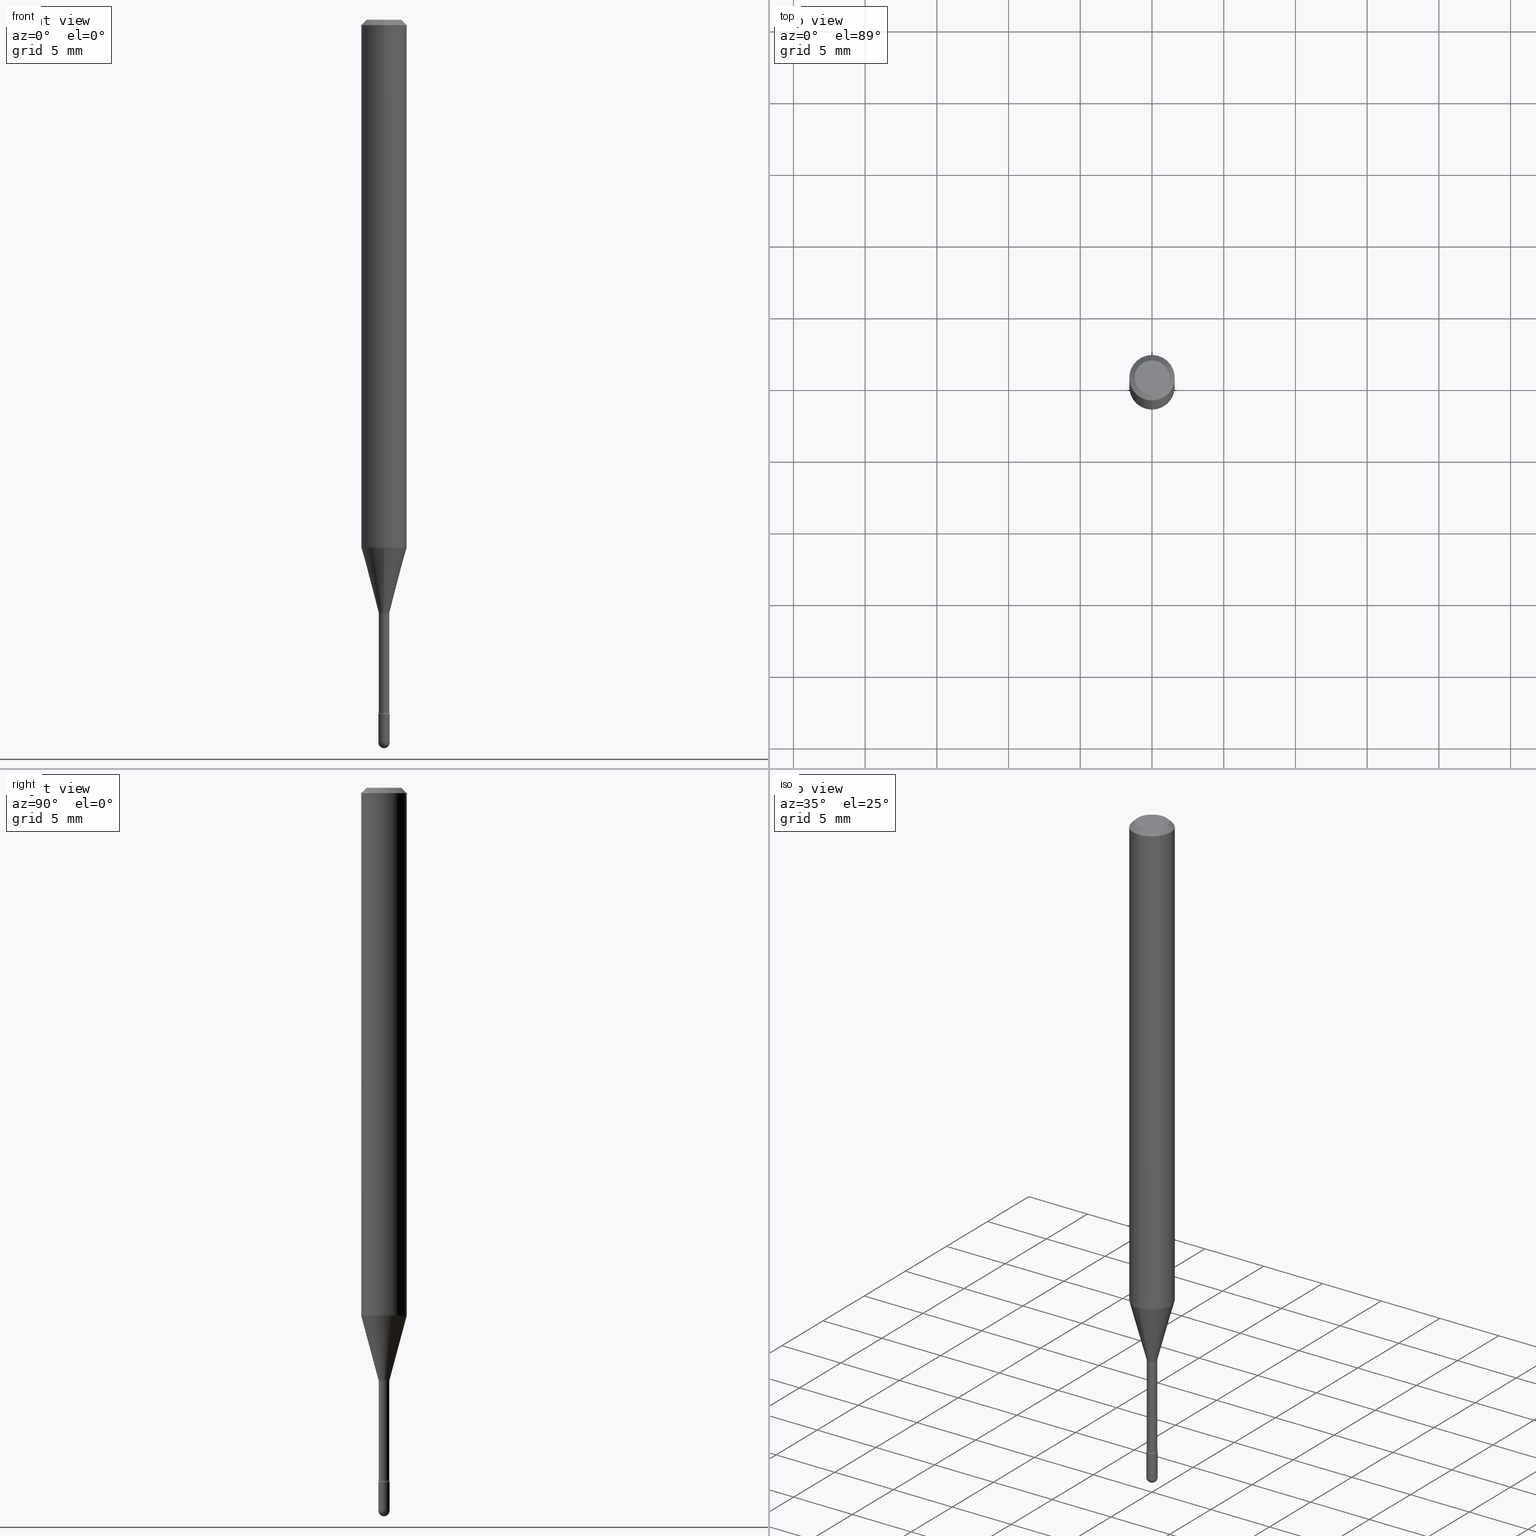
[diagram: canonical four-view strip — front | top / right | iso, engineering-drawing reading convention]
A machine part, canonical four-view strip (front | top / right | iso — engineering-drawing reading convention). The complete STEP part file that produces these views, byte-faithful:
ISO-10303-21;
HEADER;
FILE_DESCRIPTION (( 'STEP AP203' ),
    '1' );
FILE_NAME ('04571.STEP',
    '2024-04-09T22:01:47',
    ( '' ),
    ( '' ),
    'SwSTEP 2.0',
    'SolidWorks 2023',
    '' );
FILE_SCHEMA (( 'CONFIG_CONTROL_DESIGN' ));
ENDSEC;

DATA;
#1 = CARTESIAN_POINT ( 'NONE',  ( -1.082359215040905611E-16, -0.01550000000000666643, -1.906999999999999806 ) ) ;
#2 = VERTEX_POINT ( 'NONE', #214 ) ;
#3 = DIRECTION ( 'NONE',  ( 6.982962677686265922E-15, 1.000000000000000000, 0.000000000000000000 ) ) ;
#4 = VERTEX_POINT ( 'NONE', #376 ) ;
#5 = CIRCLE ( 'NONE', #289, 0.01549999999999999989 ) ;
#6 = FACE_OUTER_BOUND ( 'NONE', #204, .T. ) ;
#7 = CIRCLE ( 'NONE', #484, 0.01549999999999993744 ) ;
#8 = ORIENTED_EDGE ( 'NONE', *, *, #545, .T. ) ;
#9 = DIRECTION ( 'NONE',  ( -6.982962677686265922E-15, -1.000000000000000000, 3.491488494413426831E-15 ) ) ;
#10 = CARTESIAN_POINT ( 'NONE',  ( 4.440892098500978191E-16, 0.06249999999999492073, -1.449048163777072906 ) ) ;
#11 = DIRECTION ( 'NONE',  ( -2.445463809477115105E-29, 3.491488494413427226E-15, 1.000000000000000000 ) ) ;
#12 = CARTESIAN_POINT ( 'NONE',  ( 2.755524256971659993E-16, 0.01506111260565827503, -1.626092501787273159 ) ) ;
#13 = DIRECTION ( 'NONE',  ( -2.445468806185136597E-29, 3.491481338843145583E-15, 1.000000000000000000 ) ) ;
#14 = AXIS2_PLACEMENT_3D ( 'NONE', #555, #171, #203 ) ;
#15 = AXIS2_PLACEMENT_3D ( 'NONE', #460, #63, #97 ) ;
#16 = CARTESIAN_POINT ( 'NONE',  ( 3.986052497610997470E-29, -5.691026553214718169E-15, -1.629974787463811081 ) ) ;
#17 = DIRECTION ( 'NONE',  ( 1.000000000000000000, -6.982962677686266711E-15, 4.876176775795935232E-29 ) ) ;
#18 = CALENDAR_DATE ( 2024, 9, 4 ) ;
#19 = EDGE_CURVE ( 'NONE', #250, #516, #115, .T. ) ;
#20 = COORDINATED_UNIVERSAL_TIME_OFFSET ( 5, 0, .BEHIND. ) ;
#21 = DESIGN_CONTEXT ( 'detailed design', #165, 'design' ) ;
#22 = EDGE_CURVE ( 'NONE', #132, #2, #519, .T. ) ;
#23 = EDGE_CURVE ( 'NONE', #342, #36, #215, .T. ) ;
#24 = CLOSED_SHELL ( 'NONE', ( #224, #449, #434, #411, #205 ) ) ;
#25 = ORIENTED_EDGE ( 'NONE', *, *, #433, .F. ) ;
#26 = DIRECTION ( 'NONE',  ( 1.000000000000000000, 0.000000000000000000, 0.000000000000000000 ) ) ;
#27 = DIRECTION ( 'NONE',  ( 1.000000000000000000, -6.982962677686238312E-15, 0.000000000000000000 ) ) ;
#28 = CARTESIAN_POINT ( 'NONE',  ( 0.01549999999999999989, -6.766490834678014468E-15, -1.906999999999999806 ) ) ;
#29 = EDGE_LOOP ( 'NONE', ( #232, #522, #25, #448 ) ) ;
#30 = DIRECTION ( 'NONE',  ( -6.982962677686265922E-15, -1.000000000000000000, 3.491488494413427620E-15 ) ) ;
#31 = CARTESIAN_POINT ( 'NONE',  ( 4.853032845874404195E-29, -6.928844716934222977E-15, -1.984500000000000153 ) ) ;
#32 = CLOSED_SHELL ( 'NONE', ( #318, #394, #508, #252, #503, #385, #241, #88, #315, #308, #125, #284, #363, #540 ) ) ;
#33 = EDGE_CURVE ( 'NONE', #317, #81, #166, .T. ) ;
#34 = LINE ( 'NONE', #496, #43 ) ;
#35 = AXIS2_PLACEMENT_3D ( 'NONE', #548, #113, #511 ) ;
#36 = VERTEX_POINT ( 'NONE', #514 ) ;
#37 = AXIS2_PLACEMENT_3D ( 'NONE', #461, #221, #299 ) ;
#38 = LINE ( 'NONE', #531, #262 ) ;
#39 = CARTESIAN_POINT ( 'NONE',  ( -1.169113584055446105E-44, 1.669184350826100908E-30, 4.780733988912460139E-16 ) ) ;
#40 = ORIENTED_EDGE ( 'NONE', *, *, #287, .F. ) ;
#41 = PRODUCT_RELATED_PRODUCT_CATEGORY ( 'detail', '', ( #338 ) ) ;
#42 = CIRCLE ( 'NONE', #295, 0.04749999999999999362 ) ;
#43 = VECTOR ( 'NONE', #371, 39.37007874015748143 ) ;
#44 = EDGE_LOOP ( 'NONE', ( #219, #381 ) ) ;
#45 = DIRECTION ( 'NONE',  ( -2.445463809477115105E-29, 3.491488494413427620E-15, 1.000000000000000000 ) ) ;
#46 = ORIENTED_EDGE ( 'NONE', *, *, #141, .F. ) ;
#47 = CARTESIAN_POINT ( 'NONE',  ( 4.663509013395054719E-29, -6.658254913173878091E-15, -1.906999999999999806 ) ) ;
#48 = ORIENTED_EDGE ( 'NONE', *, *, #490, .F. ) ;
#49 = CIRCLE ( 'NONE', #345, 0.01549999999999999989 ) ;
#50 = AXIS2_PLACEMENT_3D ( 'NONE', #529, #143, #367 ) ;
#51 = CARTESIAN_POINT ( 'NONE',  ( 2.099653784171563441E-16, 0.02954999999999339752, -1.901746667724196316 ) ) ;
#52 = CARTESIAN_POINT ( 'NONE',  ( -0.01549999999999999989, -6.683415691011234513E-15, -1.984500000000000153 ) ) ;
#53 = CARTESIAN_POINT ( 'NONE',  ( 1.067590460480017694E-16, 0.01454999999999338246, -1.901746667724196316 ) ) ;
#54 = DIRECTION ( 'NONE',  ( -6.982962677686265922E-15, -1.000000000000000000, 3.491488494413427226E-15 ) ) ;
#55 = EDGE_CURVE ( 'NONE', #344, #516, #5, .T. ) ;
#56 = DIRECTION ( 'NONE',  ( -2.445463809477115105E-29, 3.491488494413427226E-15, 1.000000000000000000 ) ) ;
#57 = CIRCLE ( 'NONE', #333, 0.06250000000000000000 ) ;
#58 = CC_DESIGN_SECURITY_CLASSIFICATION ( #226, ( #255 ) ) ;
#59 = APPROVAL_STATUS ( 'not_yet_approved' ) ;
#60 = CARTESIAN_POINT ( 'NONE',  ( 0.01549999999999999989, -6.901785736558187699E-15, -1.984500000000000153 ) ) ;
#61 = CARTESIAN_POINT ( 'NONE',  ( 0.000000000000000000, 0.000000000000000000, 0.000000000000000000 ) ) ;
#62 = CARTESIAN_POINT ( 'NONE',  ( 0.000000000000000000, 0.000000000000000000, 0.000000000000000000 ) ) ;
#63 = DIRECTION ( 'NONE',  ( -2.445463809477115105E-29, 3.491488494413427226E-15, 1.000000000000000000 ) ) ;
#64 = CALENDAR_DATE ( 2024, 9, 4 ) ;
#65 = EDGE_CURVE ( 'NONE', #536, #374, #38, .T. ) ;
#66 = MANIFOLD_SOLID_BREP ( 'Body-Move/Copy2[1]', #24 ) ;
#67 = EDGE_CURVE ( 'NONE', #516, #344, #49, .T. ) ;
#68 = AXIS2_PLACEMENT_3D ( 'NONE', #31, #331, #102 ) ;
#69 = APPROVAL_PERSON_ORGANIZATION ( #408, #231, #207 ) ;
#70 = ORIENTED_EDGE ( 'NONE', *, *, #550, .F. ) ;
#71 = FACE_OUTER_BOUND ( 'NONE', #525, .T. ) ;
#72 = DIRECTION ( 'NONE',  ( 6.982962677686265922E-15, 1.000000000000000000, 0.000000000000000000 ) ) ;
#73 = CARTESIAN_POINT ( 'NONE',  ( 3.668195714215692783E-31, -5.237232741620169829E-17, -0.01500000000000008271 ) ) ;
#74 = PERSON_AND_ORGANIZATION ( #414, #157 ) ;
#75 = VERTEX_POINT ( 'NONE', #10 ) ;
#76 = CARTESIAN_POINT ( 'NONE',  ( 2.023516522917315970E-45, -2.889125445918776948E-31, -8.274669218195695059E-17 ) ) ;
#77 = CARTESIAN_POINT ( 'NONE',  ( 4.650662153186051955E-29, -6.639913001566167862E-15, -1.901746667724196316 ) ) ;
#78 = AXIS2_PLACEMENT_3D ( 'NONE', #164, #283, #457 ) ;
#79 = AXIS2_PLACEMENT_3D ( 'NONE', #206, #321, #249 ) ;
#80 = CARTESIAN_POINT ( 'NONE',  ( -0.01549999999999999989, 1.101341240428155280E-16, -7.624349389895103058E-31 ) ) ;
#81 = VERTEX_POINT ( 'NONE', #426 ) ;
#82 = ORIENTED_EDGE ( 'NONE', *, *, #33, .T. ) ;
#83 = PRODUCT_DEFINITION_SHAPE ( 'NONE', 'NONE',  #455 ) ;
#84 = CARTESIAN_POINT ( 'NONE',  ( 4.364351673553919652E-16, 0.06249999999999995143, -0.01500000000000030129 ) ) ;
#85 = ORIENTED_EDGE ( 'NONE', *, *, #492, .T. ) ;
#86 = AXIS2_PLACEMENT_3D ( 'NONE', #51, #563, #178 ) ;
#87 = LOCAL_TIME ( 18, 1, 47.00000000000000000, #240 ) ;
#88 = ADVANCED_FACE ( 'NONE', ( #535 ), #188, .T. ) ;
#89 = ORIENTED_EDGE ( 'NONE', *, *, #564, .F. ) ;
#90 = ORIENTED_EDGE ( 'NONE', *, *, #193, .T. ) ;
#91 = DIRECTION ( 'NONE',  ( -2.445463809477115105E-29, 3.491488494413427226E-15, 1.000000000000000000 ) ) ;
#92 = FACE_OUTER_BOUND ( 'NONE', #259, .T. ) ;
#93 = DIRECTION ( 'NONE',  ( -6.982962677686265922E-15, -1.000000000000000000, 4.370956789862821150E-15 ) ) ;
#94 = ORIENTED_EDGE ( 'NONE', *, *, #65, .F. ) ;
#95 = CARTESIAN_POINT ( 'NONE',  ( 3.668195714215692783E-31, -5.237232741620169829E-17, -0.01500000000000008271 ) ) ;
#96 = DIRECTION ( 'NONE',  ( -2.445468806185136597E-29, 3.491481338843145583E-15, 1.000000000000000000 ) ) ;
#97 = DIRECTION ( 'NONE',  ( -6.982962677686266711E-15, -1.000000000000000000, 3.491488494413426042E-15 ) ) ;
#98 = CARTESIAN_POINT ( 'NONE',  ( -3.773273898774340269E-16, -0.04749999999999999362, 8.309901130268083621E-17 ) ) ;
#99 = LINE ( 'NONE', #421, #369 ) ;
#100 = CC_DESIGN_DATE_AND_TIME_ASSIGNMENT ( #158, #110, ( #226 ) ) ;
#101 = APPLICATION_CONTEXT ( 'configuration controlled 3d designs of mechanical parts and assemblies' ) ;
#102 = DIRECTION ( 'NONE',  ( 1.000000000000000000, -6.982962677686238312E-15, 0.000000000000000000 ) ) ;
#103 = DIRECTION ( 'NONE',  ( -2.445463809477115105E-29, 3.491488494413427226E-15, 1.000000000000000000 ) ) ;
#104 = FACE_OUTER_BOUND ( 'NONE', #124, .T. ) ;
#105 = DIRECTION ( 'NONE',  ( -6.982962677686267499E-15, -1.000000000000000000, 0.000000000000000000 ) ) ;
#106 = VECTOR ( 'NONE', #398, 39.37007874015748143 ) ;
#107 = AXIS2_PLACEMENT_3D ( 'NONE', #392, #474, #3 ) ;
#108 = UNCERTAINTY_MEASURE_WITH_UNIT (LENGTH_MEASURE( 1.000000000000000082E-05 ), #382, 'distance_accuracy_value', 'NONE');
#109 = PLANE ( 'NONE',  #209 ) ;
#110 = DATE_TIME_ROLE ( 'classification_date' ) ;
#111 = APPLICATION_PROTOCOL_DEFINITION ( 'international standard', 'config_control_design', 1994, #165 ) ;
#112 = ORIENTED_EDGE ( 'NONE', *, *, #65, .T. ) ;
#113 = DIRECTION ( 'NONE',  ( -2.445463809477115105E-29, 3.491488494413427226E-15, 1.000000000000000000 ) ) ;
#114 = CARTESIAN_POINT ( 'NONE',  ( -4.364351673553563186E-16, -0.06250000000000507927, -1.449048163777072240 ) ) ;
#115 = CIRCLE ( 'NONE', #86, 0.01500000000000001853 ) ;
#116 = COORDINATED_UNIVERSAL_TIME_OFFSET ( 5, 0, .BEHIND. ) ;
#117 = CC_DESIGN_APPROVAL ( #436, ( #255 ) ) ;
#118 = ORIENTED_EDGE ( 'NONE', *, *, #287, .T. ) ;
#119 = DATE_AND_TIME ( #311, #87 ) ;
#120 = EDGE_CURVE ( 'NONE', #423, #536, #272, .T. ) ;
#121 = ORIENTED_EDGE ( 'NONE', *, *, #492, .F. ) ;
#122 = EDGE_CURVE ( 'NONE', #140, #81, #99, .T. ) ;
#123 = DIRECTION ( 'NONE',  ( -2.445463809477115105E-29, 3.491488494413427226E-15, 1.000000000000000000 ) ) ;
#124 = EDGE_LOOP ( 'NONE', ( #70, #530, #416, #112, #475 ) ) ;
#125 = ADVANCED_FACE ( 'NONE', ( #544 ), #109, .F. ) ;
#126 = AXIS2_PLACEMENT_3D ( 'NONE', #351, #437, #393 ) ;
#127 = VECTOR ( 'NONE', #159, 39.37007874015748854 ) ;
#128 = ORIENTED_EDGE ( 'NONE', *, *, #372, .T. ) ;
#129 = CYLINDRICAL_SURFACE ( 'NONE', #517, 0.06250000000000000000 ) ;
#130 = ORIENTED_EDGE ( 'NONE', *, *, #523, .F. ) ;
#131 = DIRECTION ( 'NONE',  ( -6.982962677686265922E-15, -1.000000000000000000, 4.370956789862821150E-15 ) ) ;
#132 = VERTEX_POINT ( 'NONE', #198 ) ;
#133 = ORIENTED_EDGE ( 'NONE', *, *, #264, .F. ) ;
#134 = EDGE_LOOP ( 'NONE', ( #121, #368, #566, #528 ) ) ;
#135 = CARTESIAN_POINT ( 'NONE',  ( 4.663499484672858072E-29, -6.658268558846404799E-15, -1.906999999999999806 ) ) ;
#136 = DIRECTION ( 'NONE',  ( -2.445463809477115105E-29, 3.491488494413427226E-15, 1.000000000000000000 ) ) ;
#137 = DIRECTION ( 'NONE',  ( -6.982962677686266711E-15, -1.000000000000000000, 3.491488494413428014E-15 ) ) ;
#138 = TOROIDAL_SURFACE ( 'NONE', #388, 0.02955000000000003804, 0.01500000000000001853 ) ;
#139 = DIRECTION ( 'NONE',  ( -2.445463809477115105E-29, 3.491488494413427226E-15, 1.000000000000000000 ) ) ;
#140 = VERTEX_POINT ( 'NONE', #359 ) ;
#141 = EDGE_CURVE ( 'NONE', #75, #2, #201, .T. ) ;
#142 = ORIENTED_EDGE ( 'NONE', *, *, #316, .T. ) ;
#143 = DIRECTION ( 'NONE',  ( 1.000000000000000000, -7.105427357601001070E-15, 4.926315596172544680E-29 ) ) ;
#144 = ORIENTED_EDGE ( 'NONE', *, *, #245, .T. ) ;
#145 = CARTESIAN_POINT ( 'NONE',  ( 4.853032845874404195E-29, -6.928844716934222977E-15, -1.984500000000000153 ) ) ;
#146 = CIRCLE ( 'NONE', #271, 0.06250000000000000000 ) ;
#147 = DIRECTION ( 'NONE',  ( -2.445463809477115105E-29, 3.491488494413427226E-15, 1.000000000000000000 ) ) ;
#148 = CC_DESIGN_PERSON_AND_ORGANIZATION_ASSIGNMENT ( #512, #153, ( #455 ) ) ;
#149 = LOCAL_TIME ( 18, 1, 47.00000000000000000, #20 ) ;
#150 = CARTESIAN_POINT ( 'NONE',  ( -1.101341240427667542E-16, -0.01550000000000689715, -1.984500000000000153 ) ) ;
#151 = ORIENTED_EDGE ( 'NONE', *, *, #163, .T. ) ;
#152 = DIRECTION ( 'NONE',  ( -6.982962677686265133E-15, -1.000000000000000000, 0.000000000000000000 ) ) ;
#153 = PERSON_AND_ORGANIZATION_ROLE ( 'creator' ) ;
#154 = AXIS2_PLACEMENT_3D ( 'NONE', #185, #348, #533 ) ;
#155 = EDGE_CURVE ( 'NONE', #250, #317, #161, .T. ) ;
#156 = DIRECTION ( 'NONE',  ( 4.937700262164548042E-15, 0.7071067811865451302, -0.7071067811865499042 ) ) ;
#157 = ORGANIZATION ( 'UNSPECIFIED', 'UNSPECIFIED', '' ) ;
#158 = DATE_AND_TIME ( #18, #192 ) ;
#159 = DIRECTION ( 'NONE',  ( -1.807323732225328562E-15, -0.2588190451025179639, 0.9659258262890690894 ) ) ;
#160 = VERTEX_POINT ( 'NONE', #114 ) ;
#161 = LINE ( 'NONE', #502, #556 ) ;
#162 = APPROVAL_ROLE ( '' ) ;
#163 = EDGE_CURVE ( 'NONE', #174, #2, #146, .T. ) ;
#164 = CARTESIAN_POINT ( 'NONE',  ( 3.976550363982877177E-29, -5.677483260842208723E-15, -1.626092501787273159 ) ) ;
#165 = APPLICATION_CONTEXT ( 'configuration controlled 3d designs of mechanical parts and assemblies' ) ;
#166 = CIRCLE ( 'NONE', #404, 0.01455000000000000217 ) ;
#167 = PERSON_AND_ORGANIZATION_ROLE ( 'creator' ) ;
#168 = CIRCLE ( 'NONE', #305, 0.01455000000000000217 ) ;
#169 = ORIENTED_EDGE ( 'NONE', *, *, #23, .F. ) ;
#170 = DIRECTION ( 'NONE',  ( -6.982962677686265922E-15, -1.000000000000000000, 0.000000000000000000 ) ) ;
#171 = DIRECTION ( 'NONE',  ( -2.445468806185136597E-29, 3.491481338843145583E-15, 1.000000000000000000 ) ) ;
#172 = DIRECTION ( 'NONE',  ( -2.445463809477115105E-29, 3.491488494413427226E-15, 1.000000000000000000 ) ) ;
#173 = CARTESIAN_POINT ( 'NONE',  ( -4.287811248607203282E-16, -0.06250000000000005551, -0.01499999999999986587 ) ) ;
#174 = VERTEX_POINT ( 'NONE', #379 ) ;
#175 = CIRCLE ( 'NONE', #254, 0.01506111260566395105 ) ;
#176 = VECTOR ( 'NONE', #435, 39.37007874015748854 ) ;
#177 = EDGE_CURVE ( 'NONE', #36, #342, #175, .T. ) ;
#178 = DIRECTION ( 'NONE',  ( 7.105427357601001859E-15, 1.000000000000000000, 0.000000000000000000 ) ) ;
#179 = ORIENTED_EDGE ( 'NONE', *, *, #523, .T. ) ;
#180 = EDGE_LOOP ( 'NONE', ( #551, #298, #467, #222 ) ) ;
#181 = FACE_OUTER_BOUND ( 'NONE', #561, .T. ) ;
#182 = CIRCLE ( 'NONE', #538, 0.01500000000000004975 ) ;
#183 = AXIS2_PLACEMENT_3D ( 'NONE', #279, #103, #312 ) ;
#184 = ORIENTED_EDGE ( 'NONE', *, *, #193, .F. ) ;
#185 = CARTESIAN_POINT ( 'NONE',  ( 3.316907271900976096E-16, 0.04749999999999999362, 3.181764987000673253E-17 ) ) ;
#186 = EDGE_LOOP ( 'NONE', ( #559, #373 ) ) ;
#187 = EDGE_CURVE ( 'NONE', #536, #220, #483, .T. ) ;
#188 = CYLINDRICAL_SURFACE ( 'NONE', #470, 0.06250000000000000000 ) ;
#189 = DIRECTION ( 'NONE',  ( -2.445463809477115105E-29, 3.491488494413427226E-15, 1.000000000000000000 ) ) ;
#190 = EDGE_CURVE ( 'NONE', #75, #160, #57, .T. ) ;
#191 = CIRCLE ( 'NONE', #507, 0.01549999999999999989 ) ;
#192 = LOCAL_TIME ( 18, 1, 47.00000000000000000, #366 ) ;
#193 = EDGE_CURVE ( 'NONE', #250, #140, #234, .T. ) ;
#194 = CARTESIAN_POINT ( 'NONE',  ( 1.082359215041854217E-16, 0.01549999999999304191, -1.984500000000000153 ) ) ;
#195 = DIRECTION ( 'NONE',  ( 0.000000000000000000, 0.000000000000000000, 1.000000000000000000 ) ) ;
#196 = PERSON_AND_ORGANIZATION ( #414, #157 ) ;
#197 = TOROIDAL_SURFACE ( 'NONE', #35, 0.02954999999999999641, 0.01500000000000004975 ) ;
#198 = CARTESIAN_POINT ( 'NONE',  ( 3.840629472727447874E-16, 0.04749999999999999362, -2.485923956665947374E-16 ) ) ;
#199 = AXIS2_PLACEMENT_3D ( 'NONE', #329, #332, #443 ) ;
#200 = APPROVAL_STATUS ( 'not_yet_approved' ) ;
#201 = LINE ( 'NONE', #239, #106 ) ;
#202 = SHAPE_DEFINITION_REPRESENTATION ( #83, #307 ) ;
#203 = DIRECTION ( 'NONE',  ( 1.000000000000000000, -6.982962677686238312E-15, 0.000000000000000000 ) ) ;
#204 = EDGE_LOOP ( 'NONE', ( #169, #179, #82, #378 ) ) ;
#205 = ADVANCED_FACE ( 'NONE', ( #104 ), #235, .T. ) ;
#206 = CARTESIAN_POINT ( 'NONE',  ( 4.663509013395054719E-29, -6.658254913173878091E-15, -1.906999999999999806 ) ) ;
#207 = APPROVAL_ROLE ( '' ) ;
#208 = FACE_OUTER_BOUND ( 'NONE', #300, .T. ) ;
#209 = AXIS2_PLACEMENT_3D ( 'NONE', #217, #453, #30 ) ;
#210 = CIRCLE ( 'NONE', #236, 0.01500000000000001853 ) ;
#211 = ORIENTED_EDGE ( 'NONE', *, *, #327, .F. ) ;
#212 = CC_DESIGN_PERSON_AND_ORGANIZATION_ASSIGNMENT ( #74, #167, ( #255 ) ) ;
#213 = ORIENTED_EDGE ( 'NONE', *, *, #155, .T. ) ;
#214 = CARTESIAN_POINT ( 'NONE',  ( 4.440892098500983121E-16, 0.06249999999999995143, -0.01500000000000030129 ) ) ;
#215 = CIRCLE ( 'NONE', #304, 0.01506111260566395105 ) ;
#216 = AXIS2_PLACEMENT_3D ( 'NONE', #39, #248, #412 ) ;
#217 = CARTESIAN_POINT ( 'NONE',  ( 1.082359215041837453E-16, 0.01549999999999334029, -1.906999999999999806 ) ) ;
#218 = ORIENTED_EDGE ( 'NONE', *, *, #19, .T. ) ;
#219 = ORIENTED_EDGE ( 'NONE', *, *, #264, .T. ) ;
#220 = VERTEX_POINT ( 'NONE', #194 ) ;
#221 = DIRECTION ( 'NONE',  ( -1.000000000000000000, 6.982962677686265922E-15, -4.883557194083112901E-29 ) ) ;
#222 = ORIENTED_EDGE ( 'NONE', *, *, #372, .F. ) ;
#223 = DIRECTION ( 'NONE',  ( -2.438088387897960049E-29, 3.491481338843145188E-15, 1.000000000000000000 ) ) ;
#224 = ADVANCED_FACE ( 'NONE', ( #257 ), #386, .T. ) ;
#225 = EDGE_CURVE ( 'NONE', #36, #81, #182, .T. ) ;
#226 = SECURITY_CLASSIFICATION ( '', '', #247 ) ;
#227 = DIRECTION ( 'NONE',  ( -6.982962677686265922E-15, -1.000000000000000000, 0.000000000000000000 ) ) ;
#228 = FACE_OUTER_BOUND ( 'NONE', #471, .T. ) ;
#229 = FACE_OUTER_BOUND ( 'NONE', #477, .T. ) ;
#230 = DIRECTION ( 'NONE',  ( -2.445463809477115105E-29, 3.491488494413427226E-15, 1.000000000000000000 ) ) ;
#231 = APPROVAL ( #324, 'UNSPECIFIED' ) ;
#232 = ORIENTED_EDGE ( 'NONE', *, *, #177, .T. ) ;
#233 = LINE ( 'NONE', #444, #176 ) ;
#234 = CIRCLE ( 'NONE', #413, 0.01455000000000001951 ) ;
#235 = CYLINDRICAL_SURFACE ( 'NONE', #243, 0.01549999999999999989 ) ;
#236 = AXIS2_PLACEMENT_3D ( 'NONE', #552, #354, #105 ) ;
#237 = APPROVAL_DATE_TIME ( #549, #231 ) ;
#238 = FACE_OUTER_BOUND ( 'NONE', #261, .T. ) ;
#239 = CARTESIAN_POINT ( 'NONE',  ( 4.440892098500625669E-16, 0.06250000000000000000, 2.598553679904068616E-16 ) ) ;
#240 = COORDINATED_UNIVERSAL_TIME_OFFSET ( 5, 0, .BEHIND. ) ;
#241 = ADVANCED_FACE ( 'NONE', ( #71 ), #493, .T. ) ;
#242 = DIRECTION ( 'NONE',  ( 1.000000000000000000, -6.982962677686266711E-15, 4.876176775795935232E-29 ) ) ;
#243 = AXIS2_PLACEMENT_3D ( 'NONE', #485, #265, #17 ) ;
#244 = TOROIDAL_SURFACE ( 'NONE', #323, 0.02954999999999999641, 0.01500000000000004975 ) ;
#245 = EDGE_CURVE ( 'NONE', #132, #478, #42, .T. ) ;
#246 = DIRECTION ( 'NONE',  ( -2.445463809477115105E-29, 3.491488494413427226E-15, 1.000000000000000000 ) ) ;
#247 = SECURITY_CLASSIFICATION_LEVEL ( 'unclassified' ) ;
#248 = DIRECTION ( 'NONE',  ( -2.445463809477115105E-29, 3.491488494413427226E-15, 1.000000000000000000 ) ) ;
#249 = DIRECTION ( 'NONE',  ( 1.000000000000000000, -6.982962677686238312E-15, 0.000000000000000000 ) ) ;
#250 = VERTEX_POINT ( 'NONE', #53 ) ;
#251 = ORIENTED_EDGE ( 'NONE', *, *, #33, .F. ) ;
#252 = ADVANCED_FACE ( 'NONE', ( #92 ), #419, .T. ) ;
#253 = ORIENTED_EDGE ( 'NONE', *, *, #155, .F. ) ;
#254 = AXIS2_PLACEMENT_3D ( 'NONE', #418, #230, #152 ) ;
#255 = PRODUCT_DEFINITION_FORMATION_WITH_SPECIFIED_SOURCE ( 'ANY', '', #338, .NOT_KNOWN. ) ;
#256 = ORIENTED_EDGE ( 'NONE', *, *, #67, .T. ) ;
#257 = FACE_OUTER_BOUND ( 'NONE', #518, .T. ) ;
#258 = CARTESIAN_POINT ( 'NONE',  ( 1.033839680531411352E-16, 0.01454999999999430881, -1.629974787463811081 ) ) ;
#259 = EDGE_LOOP ( 'NONE', ( #293, #85, #151, #320 ) ) ;
#260 = DIRECTION ( 'NONE',  ( -2.445463809477115105E-29, 3.491488494413427226E-15, 1.000000000000000000 ) ) ;
#261 = EDGE_LOOP ( 'NONE', ( #387, #213, #291, #277 ) ) ;
#262 = VECTOR ( 'NONE', #481, 39.37007874015748143 ) ;
#263 = CIRCLE ( 'NONE', #405, 0.01455000000000001951 ) ;
#264 = EDGE_CURVE ( 'NONE', #374, #334, #191, .T. ) ;
#265 = DIRECTION ( 'NONE',  ( -2.445468806185136597E-29, 3.491481338843145583E-15, 1.000000000000000000 ) ) ;
#266 = DIRECTION ( 'NONE',  ( -6.982962677686266711E-15, -1.000000000000000000, 3.491488494413428014E-15 ) ) ;
#267 = CARTESIAN_POINT ( 'NONE',  ( 3.543594842706099402E-29, -5.059334991678553225E-15, -1.449048163777072684 ) ) ;
#268 =( NAMED_UNIT ( * ) PLANE_ANGLE_UNIT ( ) SI_UNIT ( $, .RADIAN. ) );
#269 = CC_DESIGN_PERSON_AND_ORGANIZATION_ASSIGNMENT ( #360, #498, ( #338 ) ) ;
#270 = DIRECTION ( 'NONE',  ( -2.445468806185136597E-29, 3.491481338843145583E-15, 1.000000000000000000 ) ) ;
#271 = AXIS2_PLACEMENT_3D ( 'NONE', #73, #246, #465 ) ;
#272 = CIRCLE ( 'NONE', #357, 0.01549999999999999989 ) ;
#273 = CIRCLE ( 'NONE', #297, 0.01549999999999999989 ) ;
#274 = PERSON_AND_ORGANIZATION ( #414, #157 ) ;
#275 = CYLINDRICAL_SURFACE ( 'NONE', #15, 0.01455000000000001084 ) ;
#276 = CALENDAR_DATE ( 2024, 9, 4 ) ;
#277 = ORIENTED_EDGE ( 'NONE', *, *, #122, .F. ) ;
#278 = PERSON_AND_ORGANIZATION_ROLE ( 'design_supplier' ) ;
#279 = CARTESIAN_POINT ( 'NONE',  ( 3.668195714215692783E-31, -5.237232741620169829E-17, -0.01500000000000008271 ) ) ;
#280 = EDGE_LOOP ( 'NONE', ( #184, #218, #256, #211 ) ) ;
#281 = APPROVAL_DATE_TIME ( #396, #436 ) ;
#282 = ORIENTED_EDGE ( 'NONE', *, *, #23, .T. ) ;
#283 = DIRECTION ( 'NONE',  ( -2.445463809477115105E-29, 3.491488494413427226E-15, 1.000000000000000000 ) ) ;
#284 = ADVANCED_FACE ( 'NONE', ( #208 ), #138, .F. ) ;
#285 = CARTESIAN_POINT ( 'NONE',  ( 4.853032845874404195E-29, -6.928844716934222977E-15, -1.984500000000000153 ) ) ;
#286 = DIRECTION ( 'NONE',  ( -2.445463809477115105E-29, 3.491488494413427226E-15, 1.000000000000000000 ) ) ;
#287 = EDGE_CURVE ( 'NONE', #220, #339, #440, .T. ) ;
#288 = FACE_OUTER_BOUND ( 'NONE', #280, .T. ) ;
#289 = AXIS2_PLACEMENT_3D ( 'NONE', #415, #459, #170 ) ;
#290 = AXIS2_PLACEMENT_3D ( 'NONE', #77, #91, #54 ) ;
#291 = ORIENTED_EDGE ( 'NONE', *, *, #545, .F. ) ;
#292 = PLANE ( 'NONE',  #495 ) ;
#293 = ORIENTED_EDGE ( 'NONE', *, *, #316, .F. ) ;
#294 = EDGE_LOOP ( 'NONE', ( #130, #364, #480, #8 ) ) ;
#295 = AXIS2_PLACEMENT_3D ( 'NONE', #76, #172, #137 ) ;
#296 = FACE_OUTER_BOUND ( 'NONE', #294, .T. ) ;
#297 = AXIS2_PLACEMENT_3D ( 'NONE', #479, #13, #309 ) ;
#298 = ORIENTED_EDGE ( 'NONE', *, *, #141, .T. ) ;
#299 = DIRECTION ( 'NONE',  ( 6.982962677686265922E-15, 1.000000000000000000, 0.000000000000000000 ) ) ;
#300 = EDGE_LOOP ( 'NONE', ( #341, #89, #527, #456 ) ) ;
#301 = CARTESIAN_POINT ( 'NONE',  ( 3.543594842706099402E-29, -5.059334991678553225E-15, -1.449048163777072684 ) ) ;
#302 = FACE_OUTER_BOUND ( 'NONE', #134, .T. ) ;
#303 = ORIENTED_EDGE ( 'NONE', *, *, #190, .F. ) ;
#304 = AXIS2_PLACEMENT_3D ( 'NONE', #424, #337, #384 ) ;
#305 = AXIS2_PLACEMENT_3D ( 'NONE', #489, #139, #428 ) ;
#306 = CARTESIAN_POINT ( 'NONE',  ( 4.650652650713222529E-29, -6.639926609648106918E-15, -1.901746667724196316 ) ) ;
#307 = ADVANCED_BREP_SHAPE_REPRESENTATION ( '04571', ( #66, #438, #335 ), #562 ) ;
#308 = ADVANCED_FACE ( 'NONE', ( #181 ), #520, .F. ) ;
#309 = DIRECTION ( 'NONE',  ( 1.000000000000000000, -6.982962677686238312E-15, 0.000000000000000000 ) ) ;
#310 = CYLINDRICAL_SURFACE ( 'NONE', #216, 0.01455000000000001084 ) ;
#311 = CALENDAR_DATE ( 2024, 9, 4 ) ;
#312 = DIRECTION ( 'NONE',  ( -6.982962677686265922E-15, -1.000000000000000000, 3.483106191921935554E-15 ) ) ;
#313 = CIRCLE ( 'NONE', #79, 0.01549999999999999989 ) ;
#314 = DIRECTION ( 'NONE',  ( -2.445468806185136877E-29, 3.491481338843145188E-15, 1.000000000000000000 ) ) ;
#315 = ADVANCED_FACE ( 'NONE', ( #302 ), #322, .T. ) ;
#316 = EDGE_CURVE ( 'NONE', #478, #132, #462, .T. ) ;
#317 = VERTEX_POINT ( 'NONE', #258 ) ;
#318 = ADVANCED_FACE ( 'NONE', ( #6 ), #197, .F. ) ;
#319 = DIRECTION ( 'NONE',  ( -2.445463809477115105E-29, 3.491488494413427620E-15, 1.000000000000000000 ) ) ;
#320 = ORIENTED_EDGE ( 'NONE', *, *, #22, .F. ) ;
#321 = DIRECTION ( 'NONE',  ( -2.445468806185136597E-29, 3.491481338843145583E-15, 1.000000000000000000 ) ) ;
#322 = CONICAL_SURFACE ( 'NONE', #431, 0.06250000000000000000, 0.7853981633974483900 ) ;
#323 = AXIS2_PLACEMENT_3D ( 'NONE', #16, #399, #497 ) ;
#324 = APPROVAL_STATUS ( 'not_yet_approved' ) ;
#325 = FACE_OUTER_BOUND ( 'NONE', #513, .T. ) ;
#326 = EDGE_LOOP ( 'NONE', ( #46, #469, #128, #410 ) ) ;
#327 = EDGE_CURVE ( 'NONE', #140, #344, #210, .T. ) ;
#328 = DIRECTION ( 'NONE',  ( -6.982962677686266711E-15, -1.000000000000000000, 0.000000000000000000 ) ) ;
#329 = CARTESIAN_POINT ( 'NONE',  ( 3.976550363982877177E-29, -5.677483260842208723E-15, -1.626092501787273159 ) ) ;
#330 =( LENGTH_UNIT ( ) NAMED_UNIT ( * ) SI_UNIT ( $, .METRE. ) );
#331 = DIRECTION ( 'NONE',  ( -2.445468806185136597E-29, 3.491481338843145583E-15, 1.000000000000000000 ) ) ;
#332 = DIRECTION ( 'NONE',  ( -2.445463809477115105E-29, 3.491488494413427226E-15, 1.000000000000000000 ) ) ;
#333 = AXIS2_PLACEMENT_3D ( 'NONE', #267, #147, #93 ) ;
#334 = VERTEX_POINT ( 'NONE', #401 ) ;
#335 = AXIS2_PLACEMENT_3D ( 'NONE', #62, #195, #26 ) ;
#336 = EDGE_CURVE ( 'NONE', #342, #75, #233, .T. ) ;
#337 = DIRECTION ( 'NONE',  ( -2.445463809477115105E-29, 3.491488494413427226E-15, 1.000000000000000000 ) ) ;
#338 = PRODUCT ( '04571', '04571', '', ( #541 ) ) ;
#339 = VERTEX_POINT ( 'NONE', #52 ) ;
#340 = ORIENTED_EDGE ( 'NONE', *, *, #187, .T. ) ;
#341 = ORIENTED_EDGE ( 'NONE', *, *, #19, .F. ) ;
#342 = VERTEX_POINT ( 'NONE', #12 ) ;
#343 = FACE_OUTER_BOUND ( 'NONE', #180, .T. ) ;
#344 = VERTEX_POINT ( 'NONE', #1 ) ;
#345 = AXIS2_PLACEMENT_3D ( 'NONE', #135, #189, #430 ) ;
#346 = VECTOR ( 'NONE', #380, 39.37007874015748143 ) ;
#347 = ORIENTED_EDGE ( 'NONE', *, *, #120, .F. ) ;
#348 = DIRECTION ( 'NONE',  ( 2.445463809477114544E-29, -3.491488494413427620E-15, -1.000000000000000000 ) ) ;
#349 = DIRECTION ( 'NONE',  ( -6.982962677686265922E-15, -1.000000000000000000, 3.491488494413426831E-15 ) ) ;
#350 = EDGE_CURVE ( 'NONE', #36, #160, #476, .T. ) ;
#351 = CARTESIAN_POINT ( 'NONE',  ( 3.668195714215692783E-31, -5.237232741620169829E-17, -0.01500000000000008271 ) ) ;
#352 = DIRECTION ( 'NONE',  ( -2.445463809477115105E-29, 3.491488494413427226E-15, 1.000000000000000000 ) ) ;
#353 = EDGE_CURVE ( 'NONE', #2, #174, #539, .T. ) ;
#354 = DIRECTION ( 'NONE',  ( -1.000000000000000000, 6.982962677686265922E-15, -4.883557194083112340E-29 ) ) ;
#355 = CALENDAR_DATE ( 2024, 9, 4 ) ;
#356 = PERSON_AND_ORGANIZATION_ROLE ( 'classification_officer' ) ;
#357 = AXIS2_PLACEMENT_3D ( 'NONE', #145, #96, #487 ) ;
#358 = CONICAL_SURFACE ( 'NONE', #199, 0.01506111260566395105, 0.2617993877991500740 ) ;
#359 = CARTESIAN_POINT ( 'NONE',  ( -1.016021069602887860E-16, -0.01455000000000666004, -1.901746667724196316 ) ) ;
#360 = PERSON_AND_ORGANIZATION ( #414, #157 ) ;
#361 =( NAMED_UNIT ( * ) SI_UNIT ( $, .STERADIAN. ) SOLID_ANGLE_UNIT ( ) );
#362 = PERSON_AND_ORGANIZATION ( #414, #157 ) ;
#363 = ADVANCED_FACE ( 'NONE', ( #325 ), #310, .T. ) ;
#364 = ORIENTED_EDGE ( 'NONE', *, *, #177, .F. ) ;
#365 = DIRECTION ( 'NONE',  ( -2.445463809477115105E-29, 3.491488494413427226E-15, 1.000000000000000000 ) ) ;
#366 = COORDINATED_UNIVERSAL_TIME_OFFSET ( 5, 0, .BEHIND. ) ;
#367 = DIRECTION ( 'NONE',  ( 7.105427357601001859E-15, 1.000000000000000000, 0.000000000000000000 ) ) ;
#368 = ORIENTED_EDGE ( 'NONE', *, *, #245, .F. ) ;
#369 = VECTOR ( 'NONE', #45, 39.37007874015748143 ) ;
#370 = VECTOR ( 'NONE', #314, 39.37007874015748143 ) ;
#371 = DIRECTION ( 'NONE',  ( -2.445463809477115105E-29, 3.491488494413427620E-15, 1.000000000000000000 ) ) ;
#372 = EDGE_CURVE ( 'NONE', #160, #174, #34, .T. ) ;
#373 = ORIENTED_EDGE ( 'NONE', *, *, #67, .F. ) ;
#374 = VERTEX_POINT ( 'NONE', #28 ) ;
#375 = AXIS2_PLACEMENT_3D ( 'NONE', #61, #445, #242 ) ;
#376 = CARTESIAN_POINT ( 'NONE',  ( 4.891600366244387514E-29, -6.982013576416952132E-15, -2.000000000000000000 ) ) ;
#377 = LOCAL_TIME ( 18, 1, 47.00000000000000000, #116 ) ;
#378 = ORIENTED_EDGE ( 'NONE', *, *, #225, .F. ) ;
#379 = CARTESIAN_POINT ( 'NONE',  ( -4.364351673553912750E-16, -0.06250000000000005551, -0.01499999999999986587 ) ) ;
#380 = DIRECTION ( 'NONE',  ( -4.851104656540964275E-15, -0.7071067811865500152, -0.7071067811865450192 ) ) ;
#381 = ORIENTED_EDGE ( 'NONE', *, *, #482, .T. ) ;
#382 =( CONVERSION_BASED_UNIT ( 'INCH', #560 ) LENGTH_UNIT ( ) NAMED_UNIT ( #565 ) );
#383 = CARTESIAN_POINT ( 'NONE',  ( -1.169113584055446105E-44, 1.669184350826100908E-30, 4.780733988912460139E-16 ) ) ;
#384 = DIRECTION ( 'NONE',  ( -6.982962677686265133E-15, -1.000000000000000000, 0.000000000000000000 ) ) ;
#385 = ADVANCED_FACE ( 'NONE', ( #491 ), #358, .T. ) ;
#386 = CYLINDRICAL_SURFACE ( 'NONE', #375, 0.01549999999999999989 ) ;
#387 = ORIENTED_EDGE ( 'NONE', *, *, #564, .T. ) ;
#388 = AXIS2_PLACEMENT_3D ( 'NONE', #532, #11, #409 ) ;
#389 = DIRECTION ( 'NONE',  ( 1.000000000000000000, -6.982962677686265922E-15, 4.876176775795935793E-29 ) ) ;
#390 = CIRCLE ( 'NONE', #50, 0.01500000000000004975 ) ;
#391 = LINE ( 'NONE', #80, #370 ) ;
#392 = CARTESIAN_POINT ( 'NONE',  ( 4.853032845874404195E-29, -6.928844716934222977E-15, -1.984500000000000153 ) ) ;
#393 = DIRECTION ( 'NONE',  ( 6.982962677686265922E-15, 1.000000000000000000, -3.483106191921935554E-15 ) ) ;
#394 = ADVANCED_FACE ( 'NONE', ( #238 ), #275, .T. ) ;
#395 = CC_DESIGN_APPROVAL ( #231, ( #455 ) ) ;
#396 = DATE_AND_TIME ( #276, #450 ) ;
#397 = CARTESIAN_POINT ( 'NONE',  ( -2.063465471255892799E-16, -0.02955000000000568630, -1.629974787463811081 ) ) ;
#398 = DIRECTION ( 'NONE',  ( -2.445463809477115105E-29, 3.491488494413427620E-15, 1.000000000000000000 ) ) ;
#399 = DIRECTION ( 'NONE',  ( -2.445463809477115105E-29, 3.491488494413427226E-15, 1.000000000000000000 ) ) ;
#400 = APPLICATION_PROTOCOL_DEFINITION ( 'international standard', 'config_control_design', 1994, #101 ) ;
#401 = CARTESIAN_POINT ( 'NONE',  ( -0.01549999999999999989, -6.683415691011234513E-15, -1.906999999999999806 ) ) ;
#402 = CC_DESIGN_DATE_AND_TIME_ASSIGNMENT ( #546, #454, ( #455 ) ) ;
#403 = APPROVAL_ROLE ( '' ) ;
#404 = AXIS2_PLACEMENT_3D ( 'NONE', #446, #365, #328 ) ;
#405 = AXIS2_PLACEMENT_3D ( 'NONE', #542, #286, #452 ) ;
#406 = DIRECTION ( 'NONE',  ( -1.000000000000000000, 6.982962677686265922E-15, -4.883557194083112340E-29 ) ) ;
#407 = CARTESIAN_POINT ( 'NONE',  ( 4.853032845874404195E-29, -6.928844716934222977E-15, -1.984500000000000153 ) ) ;
#408 = PERSON_AND_ORGANIZATION ( #414, #157 ) ;
#409 = DIRECTION ( 'NONE',  ( -6.982962677686265922E-15, -1.000000000000000000, 3.491488494413427226E-15 ) ) ;
#410 = ORIENTED_EDGE ( 'NONE', *, *, #353, .F. ) ;
#411 = ADVANCED_FACE ( 'NONE', ( #229 ), #488, .T. ) ;
#412 = DIRECTION ( 'NONE',  ( -6.982962677686266711E-15, -1.000000000000000000, 3.491488494413426042E-15 ) ) ;
#413 = AXIS2_PLACEMENT_3D ( 'NONE', #306, #56, #227 ) ;
#414 = PERSON ( 'UNSPECIFIED', 'UNSPECIFIED', 'UNSPECIFIED', ('UNSPECIFIED'), ('UNSPECIFIED'), ('UNSPECIFIED') ) ;
#415 = CARTESIAN_POINT ( 'NONE',  ( 4.663499484672858072E-29, -6.658268558846404799E-15, -1.906999999999999806 ) ) ;
#416 = ORIENTED_EDGE ( 'NONE', *, *, #120, .T. ) ;
#417 = CC_DESIGN_PERSON_AND_ORGANIZATION_ASSIGNMENT ( #196, #356, ( #226 ) ) ;
#418 = CARTESIAN_POINT ( 'NONE',  ( 3.976550363982877177E-29, -5.677483260842208723E-15, -1.626092501787273159 ) ) ;
#419 = CONICAL_SURFACE ( 'NONE', #126, 0.06250000000000000000, 0.7853981633974483900 ) ;
#420 = ORIENTED_EDGE ( 'NONE', *, *, #122, .T. ) ;
#421 = CARTESIAN_POINT ( 'NONE',  ( -1.016021069603352548E-16, -0.01455000000000001084, 5.288745564849614527E-16 ) ) ;
#422 = CIRCLE ( 'NONE', #107, 0.01549999999999993744 ) ;
#423 = VERTEX_POINT ( 'NONE', #150 ) ;
#424 = CARTESIAN_POINT ( 'NONE',  ( 3.976550363982877177E-29, -5.677483260842208723E-15, -1.626092501787273159 ) ) ;
#425 = ORIENTED_EDGE ( 'NONE', *, *, #439, .F. ) ;
#426 = CARTESIAN_POINT ( 'NONE',  ( -1.016021069602953434E-16, -0.01455000000000569380, -1.629974787463811081 ) ) ;
#427 = CARTESIAN_POINT ( 'NONE',  ( 4.663509013395054719E-29, -6.658254913173878091E-15, -1.906999999999999806 ) ) ;
#428 = DIRECTION ( 'NONE',  ( -6.982962677686266711E-15, -1.000000000000000000, 0.000000000000000000 ) ) ;
#429 = ORIENTED_EDGE ( 'NONE', *, *, #506, .F. ) ;
#430 = DIRECTION ( 'NONE',  ( -6.982962677686265922E-15, -1.000000000000000000, 0.000000000000000000 ) ) ;
#431 = AXIS2_PLACEMENT_3D ( 'NONE', #95, #494, #499 ) ;
#432 = TOROIDAL_SURFACE ( 'NONE', #290, 0.02955000000000003804, 0.01500000000000001853 ) ;
#433 = EDGE_CURVE ( 'NONE', #160, #75, #441, .T. ) ;
#434 = ADVANCED_FACE ( 'NONE', ( #468 ), #292, .T. ) ;
#435 = DIRECTION ( 'NONE',  ( 1.839019923739598738E-15, 0.2588190451025247363, 0.9659258262890673130 ) ) ;
#436 = APPROVAL ( #59, 'UNSPECIFIED' ) ;
#437 = DIRECTION ( 'NONE',  ( 2.445463809477115105E-29, -3.491488494413427226E-15, -1.000000000000000000 ) ) ;
#438 = MANIFOLD_SOLID_BREP ( 'Body-Move/Copy2[2]', #32 ) ;
#439 = EDGE_CURVE ( 'NONE', #339, #423, #273, .T. ) ;
#440 = CIRCLE ( 'NONE', #14, 0.01549999999999999989 ) ;
#441 = CIRCLE ( 'NONE', #526, 0.06250000000000000000 ) ;
#442 = CARTESIAN_POINT ( 'NONE',  ( 1.101341240428622064E-16, 0.01549999999999334896, -1.906999999999999806 ) ) ;
#443 = DIRECTION ( 'NONE',  ( -6.982962677686265133E-15, -1.000000000000000000, 0.000000000000000000 ) ) ;
#444 = CARTESIAN_POINT ( 'NONE',  ( 1.070156415442336988E-16, 0.01506111260565827330, -1.626092501787273159 ) ) ;
#445 = DIRECTION ( 'NONE',  ( -2.445468806185136597E-29, 3.491481338843145583E-15, 1.000000000000000000 ) ) ;
#446 = CARTESIAN_POINT ( 'NONE',  ( 3.986044353102902760E-29, -5.691038216613867223E-15, -1.629974787463811081 ) ) ;
#447 = VECTOR ( 'NONE', #156, 39.37007874015748143 ) ;
#448 = ORIENTED_EDGE ( 'NONE', *, *, #350, .F. ) ;
#449 = ADVANCED_FACE ( 'NONE', ( #228 ), #553, .T. ) ;
#450 = LOCAL_TIME ( 18, 1, 47.00000000000000000, #505 ) ;
#451 = DIRECTION ( 'NONE',  ( -6.982962677686267499E-15, -1.000000000000000000, 0.000000000000000000 ) ) ;
#452 = DIRECTION ( 'NONE',  ( -6.982962677686265922E-15, -1.000000000000000000, 0.000000000000000000 ) ) ;
#453 = DIRECTION ( 'NONE',  ( -2.445463809477114544E-29, 3.491488494413427620E-15, 1.000000000000000000 ) ) ;
#454 = DATE_TIME_ROLE ( 'creation_date' ) ;
#455 = PRODUCT_DEFINITION ( 'UNKNOWN', '', #255, #21 ) ;
#456 = ORIENTED_EDGE ( 'NONE', *, *, #55, .T. ) ;
#457 = DIRECTION ( 'NONE',  ( -6.982962677686265133E-15, -1.000000000000000000, 0.000000000000000000 ) ) ;
#458 = ORIENTED_EDGE ( 'NONE', *, *, #187, .F. ) ;
#459 = DIRECTION ( 'NONE',  ( -2.445463809477115105E-29, 3.491488494413427226E-15, 1.000000000000000000 ) ) ;
#460 = CARTESIAN_POINT ( 'NONE',  ( -1.169113584055446105E-44, 1.669184350826100908E-30, 4.780733988912460139E-16 ) ) ;
#461 = CARTESIAN_POINT ( 'NONE',  ( 4.853032845874404195E-29, -6.928844716934222977E-15, -1.984500000000000153 ) ) ;
#462 = CIRCLE ( 'NONE', #524, 0.04749999999999999362 ) ;
#463 = APPROVAL_PERSON_ORGANIZATION ( #543, #436, #162 ) ;
#464 = LINE ( 'NONE', #173, #346 ) ;
#465 = DIRECTION ( 'NONE',  ( -6.982962677686265922E-15, -1.000000000000000000, 3.483106191921935554E-15 ) ) ;
#466 = ORIENTED_EDGE ( 'NONE', *, *, #350, .T. ) ;
#467 = ORIENTED_EDGE ( 'NONE', *, *, #163, .F. ) ;
#468 = FACE_OUTER_BOUND ( 'NONE', #44, .T. ) ;
#469 = ORIENTED_EDGE ( 'NONE', *, *, #190, .T. ) ;
#470 = AXIS2_PLACEMENT_3D ( 'NONE', #472, #352, #349 ) ;
#471 = EDGE_LOOP ( 'NONE', ( #429, #558, #425, #40 ) ) ;
#472 = CARTESIAN_POINT ( 'NONE',  ( -1.169113584055446105E-44, 1.669184350826100908E-30, 4.780733988912460139E-16 ) ) ;
#473 = AXIS2_PLACEMENT_3D ( 'NONE', #285, #501, #72 ) ;
#474 = DIRECTION ( 'NONE',  ( 1.000000000000000000, -6.982962677686265922E-15, 4.883557194083112340E-29 ) ) ;
#475 = ORIENTED_EDGE ( 'NONE', *, *, #482, .F. ) ;
#476 = LINE ( 'NONE', #547, #127 ) ;
#477 = EDGE_LOOP ( 'NONE', ( #48, #521, #458, #347 ) ) ;
#478 = VERTEX_POINT ( 'NONE', #98 ) ;
#479 = CARTESIAN_POINT ( 'NONE',  ( 4.853032845874404195E-29, -6.928844716934222977E-15, -1.984500000000000153 ) ) ;
#480 = ORIENTED_EDGE ( 'NONE', *, *, #225, .T. ) ;
#481 = DIRECTION ( 'NONE',  ( -2.445468806185136877E-29, 3.491481338843145188E-15, 1.000000000000000000 ) ) ;
#482 = EDGE_CURVE ( 'NONE', #334, #374, #313, .T. ) ;
#483 = CIRCLE ( 'NONE', #68, 0.01549999999999999989 ) ;
#484 = AXIS2_PLACEMENT_3D ( 'NONE', #407, #504, #534 ) ;
#485 = CARTESIAN_POINT ( 'NONE',  ( 0.000000000000000000, 0.000000000000000000, 0.000000000000000000 ) ) ;
#486 = APPROVAL ( #200, 'UNSPECIFIED' ) ;
#487 = DIRECTION ( 'NONE',  ( 1.000000000000000000, -6.982962677686238312E-15, 0.000000000000000000 ) ) ;
#488 = SPHERICAL_SURFACE ( 'NONE', #37, 0.01549999999999993744 ) ;
#489 = CARTESIAN_POINT ( 'NONE',  ( 3.986044353102902760E-29, -5.691038216613867223E-15, -1.629974787463811081 ) ) ;
#490 = EDGE_CURVE ( 'NONE', #4, #423, #7, .T. ) ;
#491 = FACE_OUTER_BOUND ( 'NONE', #29, .T. ) ;
#492 = EDGE_CURVE ( 'NONE', #478, #174, #464, .T. ) ;
#493 = CONICAL_SURFACE ( 'NONE', #78, 0.01506111260566395105, 0.2617993877991500740 ) ;
#494 = DIRECTION ( 'NONE',  ( 2.445463809477115105E-29, -3.491488494413427226E-15, -1.000000000000000000 ) ) ;
#495 = AXIS2_PLACEMENT_3D ( 'NONE', #427, #223, #389 ) ;
#496 = CARTESIAN_POINT ( 'NONE',  ( -4.364351673553916201E-16, -0.06250000000000000000, 6.962914297920852155E-16 ) ) ;
#497 = DIRECTION ( 'NONE',  ( -6.982962677686265922E-15, -1.000000000000000000, 3.491488494413427226E-15 ) ) ;
#498 = PERSON_AND_ORGANIZATION_ROLE ( 'design_owner' ) ;
#499 = DIRECTION ( 'NONE',  ( 6.982962677686265922E-15, 1.000000000000000000, -3.483106191921935554E-15 ) ) ;
#500 = ORIENTED_EDGE ( 'NONE', *, *, #550, .T. ) ;
#501 = DIRECTION ( 'NONE',  ( -1.000000000000000000, 6.982962677686265922E-15, -4.883557194083112901E-29 ) ) ;
#502 = CARTESIAN_POINT ( 'NONE',  ( 1.033839680530946418E-16, 0.01455000000000001084, 4.272722412975306737E-16 ) ) ;
#503 = ADVANCED_FACE ( 'NONE', ( #343 ), #129, .T. ) ;
#504 = DIRECTION ( 'NONE',  ( -1.000000000000000000, 7.105427357601001070E-15, -4.926315508542082329E-29 ) ) ;
#505 = COORDINATED_UNIVERSAL_TIME_OFFSET ( 5, 0, .BEHIND. ) ;
#506 = EDGE_CURVE ( 'NONE', #4, #220, #422, .T. ) ;
#507 = AXIS2_PLACEMENT_3D ( 'NONE', #47, #270, #27 ) ;
#508 = ADVANCED_FACE ( 'NONE', ( #288 ), #432, .F. ) ;
#509 = ORIENTED_EDGE ( 'NONE', *, *, #336, .F. ) ;
#510 = APPROVAL_PERSON_ORGANIZATION ( #274, #486, #403 ) ;
#511 = DIRECTION ( 'NONE',  ( -6.982962677686265922E-15, -1.000000000000000000, 3.491488494413427226E-15 ) ) ;
#512 = PERSON_AND_ORGANIZATION ( #414, #157 ) ;
#513 = EDGE_LOOP ( 'NONE', ( #253, #90, #420, #251 ) ) ;
#514 = CARTESIAN_POINT ( 'NONE',  ( -1.051711872097417477E-16, -0.01506111260566962880, -1.626092501787273159 ) ) ;
#515 = CARTESIAN_POINT ( 'NONE',  ( 2.023516522917315970E-45, -2.889125445918776948E-31, -8.274669218195695059E-17 ) ) ;
#516 = VERTEX_POINT ( 'NONE', #442 ) ;
#517 = AXIS2_PLACEMENT_3D ( 'NONE', #383, #136, #9 ) ;
#518 = EDGE_LOOP ( 'NONE', ( #118, #500, #133, #94, #340 ) ) ;
#519 = LINE ( 'NONE', #84, #447 ) ;
#520 = PLANE ( 'NONE',  #154 ) ;
#521 = ORIENTED_EDGE ( 'NONE', *, *, #506, .T. ) ;
#522 = ORIENTED_EDGE ( 'NONE', *, *, #336, .T. ) ;
#523 = EDGE_CURVE ( 'NONE', #342, #317, #390, .T. ) ;
#524 = AXIS2_PLACEMENT_3D ( 'NONE', #515, #123, #266 ) ;
#525 = EDGE_LOOP ( 'NONE', ( #509, #282, #466, #303 ) ) ;
#526 = AXIS2_PLACEMENT_3D ( 'NONE', #301, #260, #131 ) ;
#527 = ORIENTED_EDGE ( 'NONE', *, *, #327, .T. ) ;
#528 = ORIENTED_EDGE ( 'NONE', *, *, #353, .T. ) ;
#529 = CARTESIAN_POINT ( 'NONE',  ( 2.099653784171493922E-16, 0.02954999999999430652, -1.629974787463811081 ) ) ;
#530 = ORIENTED_EDGE ( 'NONE', *, *, #439, .T. ) ;
#531 = CARTESIAN_POINT ( 'NONE',  ( 0.01549999999999999989, -1.082359215041371286E-16, 7.558074002483699918E-31 ) ) ;
#532 = CARTESIAN_POINT ( 'NONE',  ( 4.650662153186051955E-29, -6.639913001566167862E-15, -1.901746667724196316 ) ) ;
#533 = DIRECTION ( 'NONE',  ( 6.982962677686265922E-15, 1.000000000000000000, -3.491488494413427620E-15 ) ) ;
#534 = DIRECTION ( 'NONE',  ( -7.105427357601001070E-15, -1.000000000000000000, 0.000000000000000000 ) ) ;
#535 = FACE_OUTER_BOUND ( 'NONE', #326, .T. ) ;
#536 = VERTEX_POINT ( 'NONE', #60 ) ;
#537 = CC_DESIGN_PERSON_AND_ORGANIZATION_ASSIGNMENT ( #362, #278, ( #255 ) ) ;
#538 = AXIS2_PLACEMENT_3D ( 'NONE', #397, #406, #451 ) ;
#539 = CIRCLE ( 'NONE', #183, 0.06250000000000000000 ) ;
#540 = ADVANCED_FACE ( 'NONE', ( #296 ), #244, .F. ) ;
#541 = MECHANICAL_CONTEXT ( 'NONE', #101, 'mechanical' ) ;
#542 = CARTESIAN_POINT ( 'NONE',  ( 4.650652650713222529E-29, -6.639926609648106918E-15, -1.901746667724196316 ) ) ;
#543 = PERSON_AND_ORGANIZATION ( #414, #157 ) ;
#544 = FACE_OUTER_BOUND ( 'NONE', #186, .T. ) ;
#545 = EDGE_CURVE ( 'NONE', #81, #317, #168, .T. ) ;
#546 = DATE_AND_TIME ( #64, #149 ) ;
#547 = CARTESIAN_POINT ( 'NONE',  ( -1.051711872097417477E-16, -0.01506111260566962880, -1.626092501787273159 ) ) ;
#548 = CARTESIAN_POINT ( 'NONE',  ( 3.986052497610997470E-29, -5.691026553214718169E-15, -1.629974787463811081 ) ) ;
#549 = DATE_AND_TIME ( #355, #377 ) ;
#550 = EDGE_CURVE ( 'NONE', #339, #334, #391, .T. ) ;
#551 = ORIENTED_EDGE ( 'NONE', *, *, #433, .T. ) ;
#552 = CARTESIAN_POINT ( 'NONE',  ( -2.063465471255829444E-16, -0.02955000000000668203, -1.901746667724196316 ) ) ;
#553 = SPHERICAL_SURFACE ( 'NONE', #473, 0.01549999999999993744 ) ;
#554 = APPROVAL_DATE_TIME ( #119, #486 ) ;
#555 = CARTESIAN_POINT ( 'NONE',  ( 4.853032845874404195E-29, -6.928844716934222977E-15, -1.984500000000000153 ) ) ;
#556 = VECTOR ( 'NONE', #319, 39.37007874015748143 ) ;
#557 = CC_DESIGN_APPROVAL ( #486, ( #226 ) ) ;
#558 = ORIENTED_EDGE ( 'NONE', *, *, #490, .T. ) ;
#559 = ORIENTED_EDGE ( 'NONE', *, *, #55, .F. ) ;
#560 = LENGTH_MEASURE_WITH_UNIT ( LENGTH_MEASURE( 0.02539999999999999897 ), #330 );
#561 = EDGE_LOOP ( 'NONE', ( #144, #142 ) ) ;
#562 =( GEOMETRIC_REPRESENTATION_CONTEXT ( 3 ) GLOBAL_UNCERTAINTY_ASSIGNED_CONTEXT ( ( #108 ) ) GLOBAL_UNIT_ASSIGNED_CONTEXT ( ( #382, #268, #361 ) ) REPRESENTATION_CONTEXT ( 'NONE', 'WORKASPACE' ) );
#563 = DIRECTION ( 'NONE',  ( 1.000000000000000000, -7.105427357601001070E-15, 4.926315596172544680E-29 ) ) ;
#564 = EDGE_CURVE ( 'NONE', #140, #250, #263, .T. ) ;
#565 = DIMENSIONAL_EXPONENTS ( 1.000000000000000000, 0.000000000000000000, 0.000000000000000000, 0.000000000000000000, 0.000000000000000000, 0.000000000000000000, 0.000000000000000000 ) ;
#566 = ORIENTED_EDGE ( 'NONE', *, *, #22, .T. ) ;
ENDSEC;
END-ISO-10303-21;
